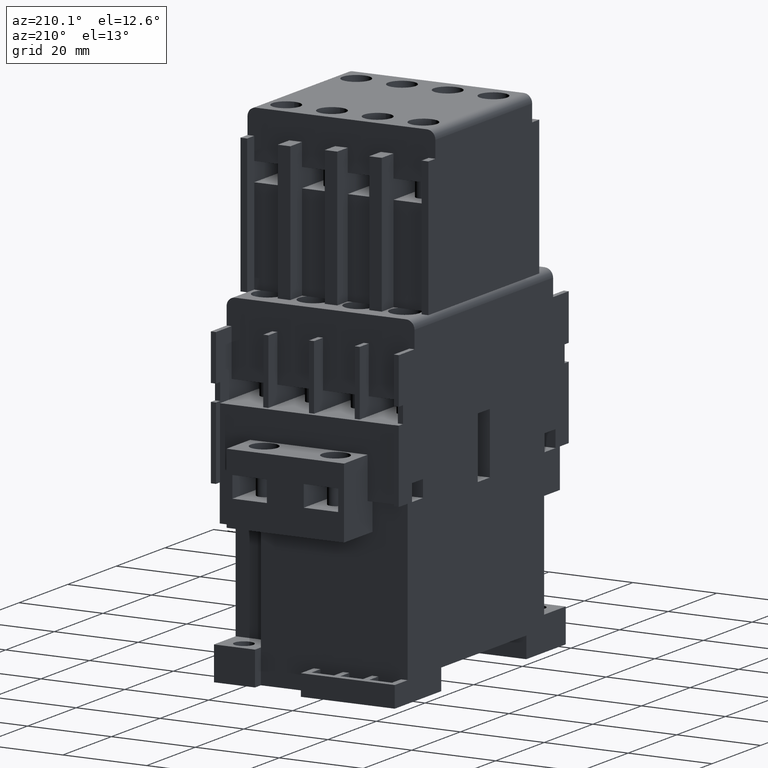
[diagram: clean part render]
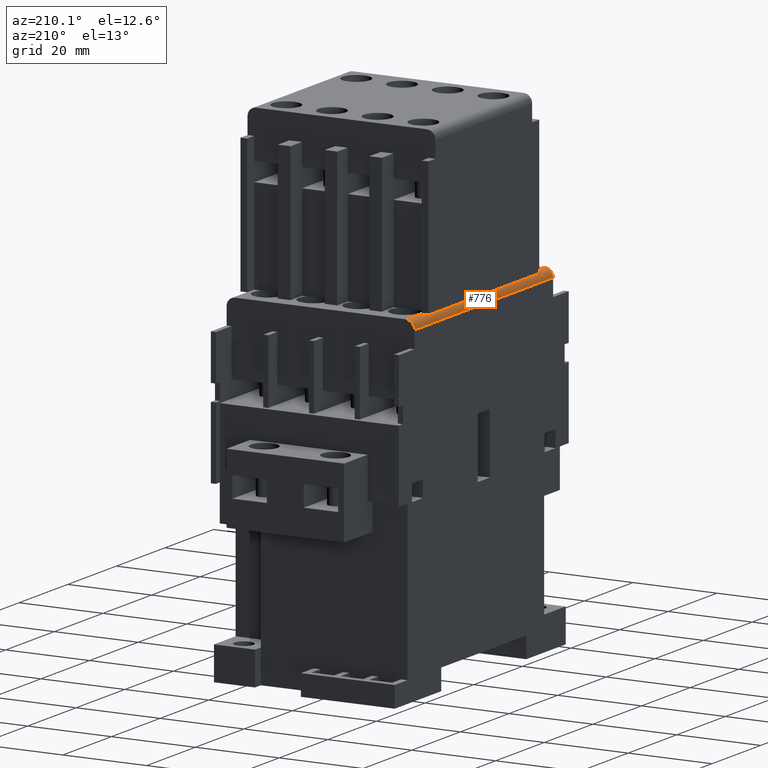
[diagram: same view with one face highlighted and labeled with its STEP entity id]
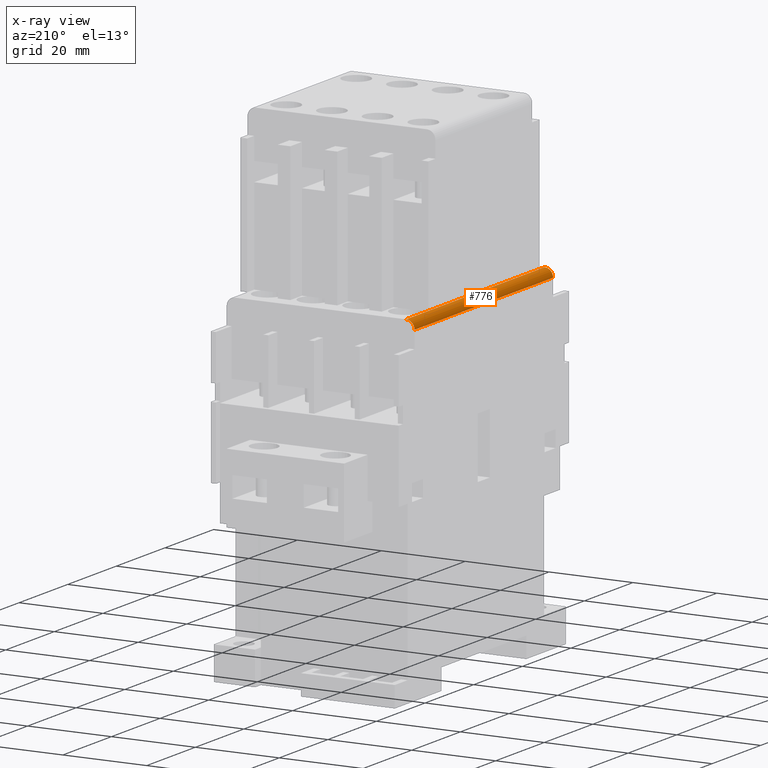
[diagram: x-ray of the same camera — body ghosted, the highlighted face saturated]
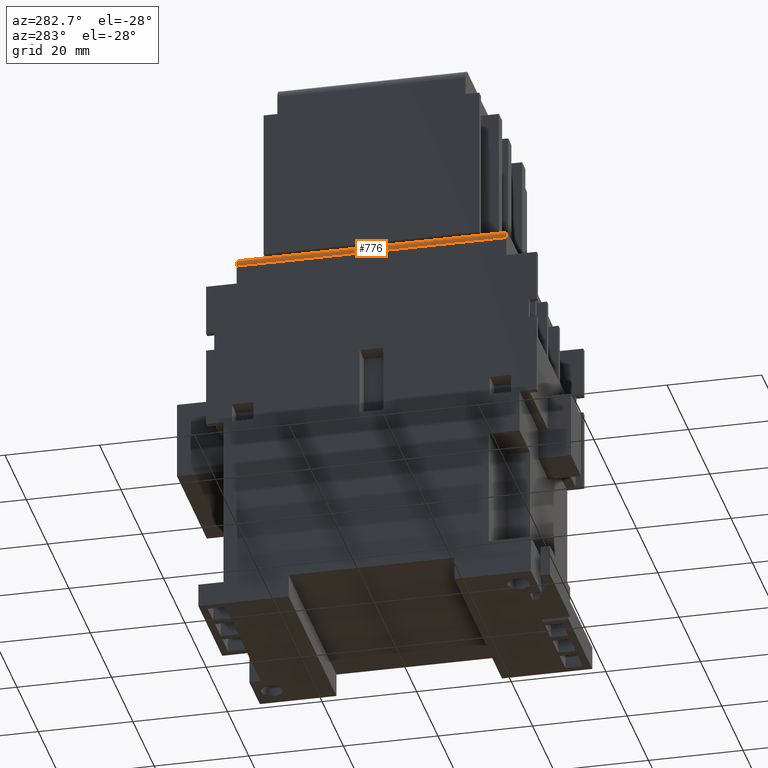
[diagram: same view with one face highlighted and labeled with its STEP entity id]
A machine part, auxiliary view. The second image highlights one B-rep face of the part: STEP entity #776.
The next image is the same camera in x-ray: the body ghosted, the highlighted face saturated — about 0% of this face is hidden behind the body in this view.
A second angle (auxiliary view) of the same face is appended — the face is thin or edge-on in the first view.
In plain terms, the highlighted cylindrical surface (edge-blend (fillet) strip) has radius 2 mm, axis along (0, 1, 0).
Its self-contained STEP definition (entity closure, byte-faithful):
#143=CYLINDRICAL_SURFACE('',#12231,2.);
#776=ADVANCED_FACE('',(#1880),#143,.T.);
#1880=FACE_OUTER_BOUND('',#2528,.T.);
#2528=EDGE_LOOP('',(#5041,#5042,#5043,#5044,#5045,#5046));
#2933=CIRCLE('',#11874,2.);
#2935=CIRCLE('',#11877,2.);
#5041=ORIENTED_EDGE('',*,*,#7975,.F.);
#5042=ORIENTED_EDGE('',*,*,#7482,.F.);
#5043=ORIENTED_EDGE('',*,*,#7962,.F.);
#5044=ORIENTED_EDGE('',*,*,#7440,.F.);
#5045=ORIENTED_EDGE('',*,*,#8414,.F.);
#5046=ORIENTED_EDGE('',*,*,#7415,.F.);
#6321=VERTEX_POINT('',#15701);
#6322=VERTEX_POINT('',#15702);
#6345=VERTEX_POINT('',#15750);
#6347=VERTEX_POINT('',#15753);
#6387=VERTEX_POINT('',#15836);
#6388=VERTEX_POINT('',#15838);
#7415=EDGE_CURVE('',#6321,#6322,#9024,.T.);
#7440=EDGE_CURVE('',#6345,#6347,#9045,.T.);
#7482=EDGE_CURVE('',#6387,#6388,#9083,.T.);
#7962=EDGE_CURVE('',#6347,#6387,#2933,.T.);
#7975=EDGE_CURVE('',#6388,#6321,#2935,.T.);
#8414=EDGE_CURVE('',#6322,#6345,#9873,.T.);
#9024=LINE('',#15700,#10375);
#9045=LINE('',#15752,#10396);
#9083=LINE('',#15837,#10434);
#9873=LINE('',#17743,#11224);
#10375=VECTOR('',#12602,1.);
#10396=VECTOR('',#12633,1.);
#10434=VECTOR('',#12683,1.);
#11224=VECTOR('',#14459,1.);
#11874=AXIS2_PLACEMENT_3D('',#16798,#13355,#13356);
#11877=AXIS2_PLACEMENT_3D('',#16818,#13372,#13373);
#12231=AXIS2_PLACEMENT_3D('',#17744,#14460,#14461);
#12602=DIRECTION('',(0.,-1.,-4.8693992308123E-016));
#12633=DIRECTION('',(0.,-1.,-4.8693992308123E-016));
#12683=DIRECTION('',(0.,1.,4.8693992308123E-016));
#13355=DIRECTION('',(0.,-1.,0.));
#13356=DIRECTION('',(0.,0.,-1.));
#13372=DIRECTION('',(0.,1.,0.));
#13373=DIRECTION('',(0.,0.,1.));
#14459=DIRECTION('',(0.,-1.,-4.8693992308123E-016));
#14460=DIRECTION('',(0.,1.,4.8693992308123E-016));
#14461=DIRECTION('',(0.,-4.86939923081223E-016,1.));
#15700=CARTESIAN_POINT('',(-20.4,-28.5,75.5));
#15701=CARTESIAN_POINT('',(-20.4,28.5,75.5));
#15702=CARTESIAN_POINT('',(-20.4,19.9,75.5));
#15750=CARTESIAN_POINT('',(-20.4,-19.9,75.5));
#15752=CARTESIAN_POINT('',(-20.4,-28.5,75.5));
#15753=CARTESIAN_POINT('',(-20.4,-28.5,75.5));
#15836=CARTESIAN_POINT('',(-22.4,-28.5,73.5));
#15837=CARTESIAN_POINT('',(-22.4,28.5,73.5));
#15838=CARTESIAN_POINT('',(-22.4,28.5,73.5));
#16798=CARTESIAN_POINT('',(-20.4,-28.5,73.5));
#16818=CARTESIAN_POINT('',(-20.4,28.5,73.5));
#17743=CARTESIAN_POINT('',(-20.4,-28.5,75.5));
#17744=CARTESIAN_POINT('',(-20.4,-1.23537048037641E-012,73.5));